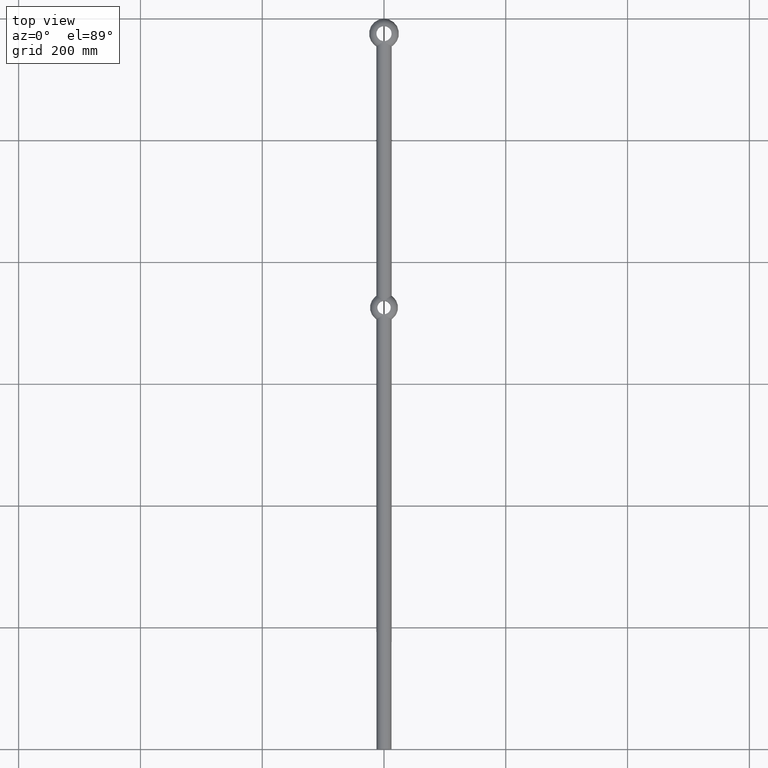
[diagram: clean part render]
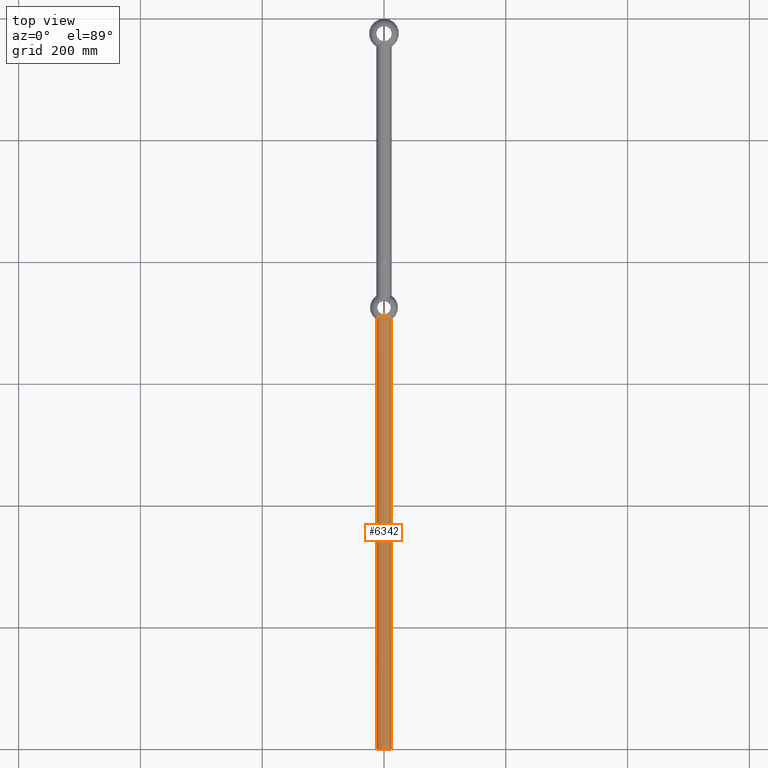
[diagram: same view with one face highlighted and labeled with its STEP entity id]
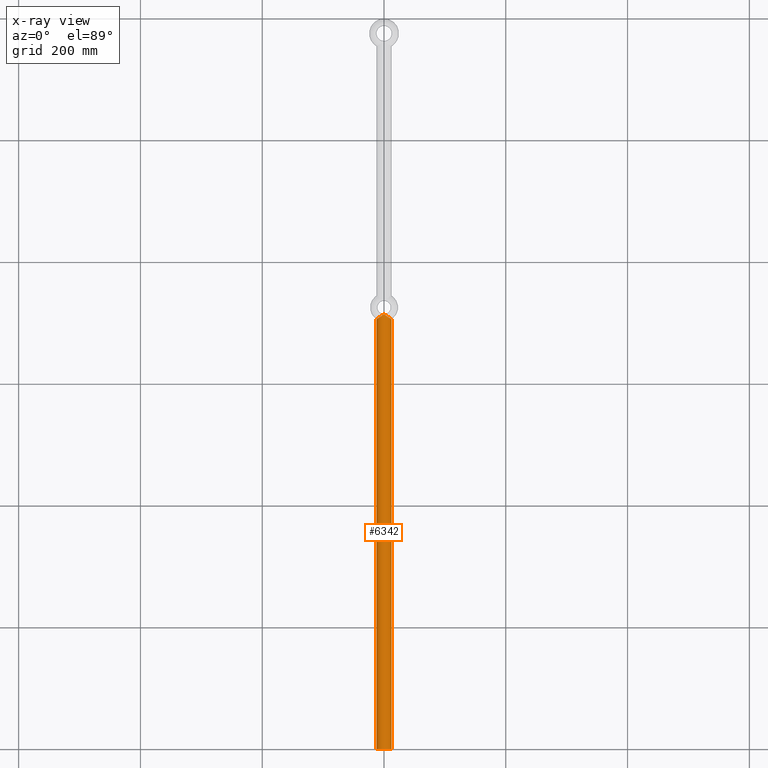
[diagram: x-ray of the same camera — body ghosted, the highlighted face saturated]
A machine part, top view. The second image highlights one B-rep face of the part: STEP entity #6342.
The next image is the same camera in x-ray: the body ghosted, the highlighted face saturated — about 0% of this face is hidden behind the body in this view.
In plain terms, the highlighted cylindrical surface (bore or boss wall) has radius 12.5 mm, axis along (-0, -1, -0).
Its self-contained STEP definition (entity closure, byte-faithful):
#34 = CARTESIAN_POINT ( 'NONE',  ( 3.958090306298088557, 711.5688135283046449, -11.86260182017057474 ) ) ;
#76 = CARTESIAN_POINT ( 'NONE',  ( 0.9780284369859363336, 713.9497151324809465, 12.46291899800123915 ) ) ;
#106 = ORIENTED_EDGE ( 'NONE', *, *, #9842, .T. ) ;
#150 = CARTESIAN_POINT ( 'NONE',  ( 11.69636377201255506, 706.6343767932925175, -4.432661876231143161 ) ) ;
#195 = ORIENTED_EDGE ( 'NONE', *, *, #562, .T. ) ;
#272 = CARTESIAN_POINT ( 'NONE',  ( -6.049038428950061608, 710.0825855475985691, 10.94598119601275599 ) ) ;
#349 = CARTESIAN_POINT ( 'NONE',  ( -2.896446207996265176, 712.3765000249653667, -12.18038553846203520 ) ) ;
#463 = CARTESIAN_POINT ( 'NONE',  ( -12.37557708383359945, 706.2609087804282808, 1.816949271129035370 ) ) ;
#562 = EDGE_CURVE ( 'NONE', #5982, #10345, #5065, .T. ) ;
#853 = CARTESIAN_POINT ( 'NONE',  ( 11.98540654602861544, 706.4744910832100686, -3.578190425711749612 ) ) ;
#891 = CARTESIAN_POINT ( 'NONE',  ( 6.710651684083771329, 709.6402197688991009, -10.55330609657151619 ) ) ;
#934 = CARTESIAN_POINT ( 'NONE',  ( 0.1152530490193925811, 714.4999999999996589, 12.49999999999999467 ) ) ;
#1009 = CARTESIAN_POINT ( 'NONE',  ( 9.763285335639560358, 707.7399431054620891, -7.817494833264392540 ) ) ;
#1212 = CARTESIAN_POINT ( 'NONE',  ( -3.595459275146385192, 711.8353660624314898, -11.99488586290688197 ) ) ;
#1250 = CARTESIAN_POINT ( 'NONE',  ( -9.757685069569808078, 707.7432492105797337, -7.824403866882096104 ) ) ;
#1322 = CARTESIAN_POINT ( 'NONE',  ( -10.27072573670141864, 707.4431062801096459, -7.137640130354301782 ) ) ;
#1371 = CARTESIAN_POINT ( 'NONE',  ( -12.47479469496548354, 706.2069344139823670, 0.9141718275163559504 ) ) ;
#1672 = CARTESIAN_POINT ( 'NONE',  ( 0.000000000000000000, 0.000000000000000000, 12.49999999999999645 ) ) ;
#1715 = CARTESIAN_POINT ( 'NONE',  ( 6.034918210630412894, 710.0921719769534093, 10.95370644490324352 ) ) ;
#1753 = CARTESIAN_POINT ( 'NONE',  ( 7.693744605340407716, 709.0046012382971412, 9.859968042706595881 ) ) ;
#1790 = CARTESIAN_POINT ( 'NONE',  ( 10.52264203433453460, 707.2976965703534233, 6.761265291202136929 ) ) ;
#1833 = CARTESIAN_POINT ( 'NONE',  ( 1.503043383957757273, 713.5190746393916470, 12.41428285818854249 ) ) ;
#1870 = CARTESIAN_POINT ( 'NONE',  ( 11.17272638985553534, 706.9274006439131881, 5.622664348009786650 ) ) ;
#1961 = CARTESIAN_POINT ( 'NONE',  ( -0.2271460333759962591, 714.4601606597491354, 12.49834700493578765 ) ) ;
#1998 = CARTESIAN_POINT ( 'NONE',  ( -5.007714147256624670, 710.8047456904614592, 11.45951233776880862 ) ) ;
#2041 = CARTESIAN_POINT ( 'NONE',  ( -0.1156422627732486413, 714.4999999999996589, 12.50000000000000000 ) ) ;
#2117 = CARTESIAN_POINT ( 'NONE',  ( -12.40205974800724675, 706.2462104537970617, -1.806242329754569109 ) ) ;
#2153 = CARTESIAN_POINT ( 'NONE',  ( -1.851091471682551726, 713.2271838837519908, -12.36724538807295914 ) ) ;
#2231 = CARTESIAN_POINT ( 'NONE',  ( -11.98889061115230703, 706.4725765171024250, 3.565961794243878824 ) ) ;
#2269 = CARTESIAN_POINT ( 'NONE',  ( -9.486056438045457284, 707.9040182558389915, -8.151262061399151548 ) ) ;
#2281 = DIRECTION ( 'NONE',  ( 0.000000000000000000, 1.000000000000000000, 0.000000000000000000 ) ) ;
#2465 = CARTESIAN_POINT ( 'NONE',  ( 0.1148557157519257549, 714.4999999999995453, -12.49999999999999289 ) ) ;
#2608 = CARTESIAN_POINT ( 'NONE',  ( 0.9786199828820373314, 713.9492433300275707, -12.46288266215421991 ) ) ;
#2645 = CARTESIAN_POINT ( 'NONE',  ( 0.4300574053441790778, 714.3562929528684435, -12.49301156894957998 ) ) ;
#2663 = DIRECTION ( 'NONE',  ( -0.000000000000000000, -1.000000000000000000, -0.000000000000000000 ) ) ;
#2680 = CARTESIAN_POINT ( 'NONE',  ( 9.509230145651955013, 707.8885222753352764, 8.158566212338982382 ) ) ;
#2760 = CARTESIAN_POINT ( 'NONE',  ( 0.8020691094110757868, 714.0938477652308620, -12.47561733527016514 ) ) ;
#2998 = AXIS2_PLACEMENT_3D ( 'NONE', #6880, #2663, #7878 ) ;
#3000 = CARTESIAN_POINT ( 'NONE',  ( -0.1152435876967470435, 714.4999999999996589, -12.49999999999999467 ) ) ;
#3074 = CARTESIAN_POINT ( 'NONE',  ( -12.30194266921710344, 706.3010098234453835, 2.261137400747658788 ) ) ;
#3088 = DIRECTION ( 'NONE',  ( 0.000000000000000000, 0.000000000000000000, 1.000000000000000000 ) ) ;
#3118 = CARTESIAN_POINT ( 'NONE',  ( -11.16786364387086117, 706.9301425804254677, -5.632360580614039769 ) ) ;
#3497 = B_SPLINE_CURVE_WITH_KNOTS ( 'NONE', 3,
 ( #7763, #2465, #8637, #2645, #7081, #2760, #2608, #10582, #3504, #4405, #10669, #5293, #34, #3669, #7973, #891, #4444, #9715, #9826, #5323, #11458, #10541, #1009, #8010, #4559, #4485, #150, #853, #10706, #3545, #8812, #8932, #9676, #4523, #3629, #7163, #6191, #1870, #7044, #1790, #10626, #2680, #8050, #5407, #1753, #5255, #6308, #1715, #8854, #7898, #3589, #8772, #9752, #6153, #1833, #76, #8895, #6273, #7938, #6234, #934, #7119 ),
 .UNSPECIFIED., .F., .F.,
 ( 4, 2, 2, 2, 2, 2, 2, 2, 2, 2, 2, 2, 2, 2, 2, 2, 2, 2, 2, 2, 2, 2, 2, 2, 2, 2, 2, 2, 2, 2, 4 ),
 ( 0.01160010150704736571, 0.01193653862037018752, 0.01227297573369300933, 0.01294584996033846386, 0.01429159841362916301, 0.01563734686691986217, 0.01698309532021055959, 0.01967459222679214872, 0.02102034068008294329, 0.02236608913337373786, 0.02371183758666453589, 0.02505758603995533393, 0.02774908294653703061, 0.02909483139982788069, 0.03044057985311872383, 0.03313207675970046562, 0.03582357366628220047, 0.03716932211957309218, 0.03851507057286397695, 0.03986081902615486172, 0.04120656747944574649, 0.04389806438602750910, 0.04524381283931847020, 0.04658956129260941742, 0.04793530974590037158, 0.04928105819919132574, 0.05197255510577305365, 0.05331830355906391067, 0.05399117778570933918, 0.05432761489903205343, 0.05466405201235477462 ),
 .UNSPECIFIED. ) ;
#3504 = CARTESIAN_POINT ( 'NONE',  ( 1.852883736927794400, 713.2256853363138589, -12.36702419332961966 ) ) ;
#3545 = CARTESIAN_POINT ( 'NONE',  ( 12.39792244811814648, 706.2484660939695686, -1.829592924429980672 ) ) ;
#3589 = CARTESIAN_POINT ( 'NONE',  ( 4.643879143979571467, 711.0651054535367166, 11.61139743305155569 ) ) ;
#3629 = CARTESIAN_POINT ( 'NONE',  ( 11.99171147647893321, 706.4710213781715993, 3.556817995476725169 ) ) ;
#3669 = CARTESIAN_POINT ( 'NONE',  ( 5.003555163965939023, 710.8011936259165395, -11.47892150805333955 ) ) ;
#3756 = CARTESIAN_POINT ( 'NONE',  ( -3.609724586731686724, 711.8245324599531614, 11.99062499113014724 ) ) ;
#3798 = CARTESIAN_POINT ( 'NONE',  ( -8.632854568927699646, 708.4191959594030550, 9.049442471043429137 ) ) ;
#3877 = CARTESIAN_POINT ( 'NONE',  ( -0.4283282719542401695, 714.3572903426924086, -12.49306536665762124 ) ) ;
#3987 = CARTESIAN_POINT ( 'NONE',  ( -10.96213927114721898, 707.0464358218330290, -6.022839512551446894 ) ) ;
#4044 = EDGE_LOOP ( 'NONE', ( #195, #4398 ) ) ;
#4137 = EDGE_LOOP ( 'NONE', ( #106 ) ) ;
#4228 = FACE_OUTER_BOUND ( 'NONE', #4044, .T. ) ;
#4398 = ORIENTED_EDGE ( 'NONE', *, *, #8998, .T. ) ;
#4405 = CARTESIAN_POINT ( 'NONE',  ( 2.552991374254464763, 712.6560355199354717, -12.24167883028932557 ) ) ;
#4444 = CARTESIAN_POINT ( 'NONE',  ( 7.047201128874421627, 709.4199958547231972, -10.33195921342264612 ) ) ;
#4485 = CARTESIAN_POINT ( 'NONE',  ( 11.53117945301393554, 706.7262438054435734, -4.845070598539714446 ) ) ;
#4523 = CARTESIAN_POINT ( 'NONE',  ( 12.11301872523465306, 706.4044191710656833, 3.118903854965727529 ) ) ;
#4559 = CARTESIAN_POINT ( 'NONE',  ( 10.97858101379134688, 707.0363968039728206, -6.040860340497826719 ) ) ;
#4672 = CARTESIAN_POINT ( 'NONE',  ( -8.930356992888375700, 708.2379490934299611, 8.756623964522859183 ) ) ;
#4745 = CARTESIAN_POINT ( 'NONE',  ( -12.10860307441600980, 706.4068425254645263, 3.135644649511097892 ) ) ;
#4814 = CARTESIAN_POINT ( 'NONE',  ( -5.698097834810766038, 710.3174663851078776, -11.15320503969839727 ) ) ;
#5065 = B_SPLINE_CURVE_WITH_KNOTS ( 'NONE', 3,
 ( #9868, #2041, #1961, #7334, #7288, #10881, #9139, #8145, #6311, #8221, #3756, #9903, #1998, #9104, #272, #7201, #8184, #3798, #4672, #10840, #7557, #5696, #6663, #7447, #6510, #2231, #4745, #3074, #463, #1371, #8364, #8406, #2117, #11028, #5615, #8327, #10921, #3118, #3987, #7412, #1322, #1250, #2269, #10097, #10136, #11071, #7523, #4814, #9249, #1212, #349, #2153, #8293, #8447, #6550, #10953, #3877, #10016, #3000, #9170 ),
 .UNSPECIFIED., .F., .F.,
 ( 4, 2, 2, 2, 2, 2, 2, 2, 2, 2, 2, 2, 2, 2, 2, 2, 2, 2, 2, 2, 2, 2, 2, 2, 2, 2, 2, 2, 2, 4 ),
 ( 0.05466405201235477462, 0.05500162528609088552, 0.05533919855982699643, 0.05601434510729921129, 0.05736463820224344673, 0.06006522439213170250, 0.06141551748707582692, 0.06276581058201995134, 0.06546639677190836670, 0.06681668986685250500, 0.06816698296179665717, 0.07086756915168504478, 0.07221786224662928022, 0.07356815534157351566, 0.07491844843651775110, 0.07626874153146198654, 0.07896932772135045742, 0.08031962081629467898, 0.08166991391123891442, 0.08302020700618314986, 0.08437050010112738530, 0.08572079319607160686, 0.08707108629101584230, 0.08977167248090431317, 0.09247225867079278405, 0.09517284486068125493, 0.09652313795562547649, 0.09719828450309760115, 0.09753585777683355940, 0.09787343105056951764 ),
 .UNSPECIFIED. ) ;
#5255 = CARTESIAN_POINT ( 'NONE',  ( 7.042109887080704844, 709.4233052854254993, 10.33544213827740599 ) ) ;
#5293 = CARTESIAN_POINT ( 'NONE',  ( 3.607989260932219278, 711.8323945115675997, -11.97349878702363846 ) ) ;
#5323 = CARTESIAN_POINT ( 'NONE',  ( 8.625512021311882549, 708.4237009865049686, -9.056396930487165875 ) ) ;
#5407 = CARTESIAN_POINT ( 'NONE',  ( 8.014756613617281644, 708.8023495445346498, 9.601283069029593165 ) ) ;
#5615 = CARTESIAN_POINT ( 'NONE',  ( -11.98686685498848270, 706.4736907303463340, -3.572745331275355429 ) ) ;
#5696 = CARTESIAN_POINT ( 'NONE',  ( -10.53649833625569876, 707.2877562056895613, 6.779219896870844586 ) ) ;
#5982 = VERTEX_POINT ( 'NONE', #10396 ) ;
#6153 = CARTESIAN_POINT ( 'NONE',  ( 1.848155644136381115, 713.2296228134777039, 12.36764654956709997 ) ) ;
#6191 = CARTESIAN_POINT ( 'NONE',  ( 11.54091770476639489, 706.7208092750014430, 4.821969295294628921 ) ) ;
#6192 = CIRCLE ( 'NONE', #8977, 12.49999999999999645 ) ;
#6234 = CARTESIAN_POINT ( 'NONE',  ( 0.2258048400517105314, 714.4607517777524208, 12.49837519209476788 ) ) ;
#6273 = CARTESIAN_POINT ( 'NONE',  ( 0.5249825342228831015, 714.2925197797251258, 12.48931420840010276 ) ) ;
#6308 = CARTESIAN_POINT ( 'NONE',  ( 6.709957680838250837, 709.6406898280580435, 10.55369085256305439 ) ) ;
#6311 = CARTESIAN_POINT ( 'NONE',  ( -1.854041913766530714, 713.2247226781784093, 12.36686703832716994 ) ) ;
#6342 = ADVANCED_FACE ( 'NONE', ( #8894, #4228 ), #11122, .T. ) ;
#6510 = CARTESIAN_POINT ( 'NONE',  ( -11.70373507139493263, 706.6302871238564194, 4.412727839192362111 ) ) ;
#6550 = CARTESIAN_POINT ( 'NONE',  ( -0.8004033546741959881, 714.0951778089266782, -12.47572514394136256 ) ) ;
#6663 = CARTESIAN_POINT ( 'NONE',  ( -10.98061114020904938, 707.0352301106561299, 6.038233688365731489 ) ) ;
#6880 = CARTESIAN_POINT ( 'NONE',  ( 0.000000000000000000, 1200.000999999999976, 0.000000000000000000 ) ) ;
#7044 = CARTESIAN_POINT ( 'NONE',  ( 10.96883081273575655, 707.0426443669990704, 6.010445434602779358 ) ) ;
#7081 = CARTESIAN_POINT ( 'NONE',  ( 0.5244309589791993353, 714.2928955858825475, -12.48933776696568643 ) ) ;
#7119 = CARTESIAN_POINT ( 'NONE',  ( 0.000000000000000000, 714.4999999999998863, 12.49999999999994493 ) ) ;
#7163 = CARTESIAN_POINT ( 'NONE',  ( 11.70522433519705174, 706.6294585397928358, 4.409061311750418710 ) ) ;
#7201 = CARTESIAN_POINT ( 'NONE',  ( -7.065482243255322814, 709.4032016550148683, 10.34168466468405967 ) ) ;
#7288 = CARTESIAN_POINT ( 'NONE',  ( -0.5243523183245278885, 714.2929581618158181, 12.48934281987370554 ) ) ;
#7334 = CARTESIAN_POINT ( 'NONE',  ( -0.4297893911309091930, 714.3564517524661142, 12.49302022152918745 ) ) ;
#7412 = CARTESIAN_POINT ( 'NONE',  ( -10.51214886816115346, 707.3037296140846593, -6.777744415924617627 ) ) ;
#7447 = CARTESIAN_POINT ( 'NONE',  ( -11.53677978155775463, 706.7231144228335324, 4.832052777421790957 ) ) ;
#7523 = CARTESIAN_POINT ( 'NONE',  ( -7.044538840065239782, 709.4168930952400842, -10.35551901757903259 ) ) ;
#7557 = CARTESIAN_POINT ( 'NONE',  ( -9.773672518172464407, 707.7338316863759928, 7.804276417934755017 ) ) ;
#7763 = CARTESIAN_POINT ( 'NONE',  ( -9.313064655098561723E-21, 714.4999999999998863, -12.49999999999999645 ) ) ;
#7878 = DIRECTION ( 'NONE',  ( 0.000000000000000000, 0.000000000000000000, -1.000000000000000000 ) ) ;
#7898 = CARTESIAN_POINT ( 'NONE',  ( 4.997178659694409220, 710.8122249160129513, 11.46411407676463412 ) ) ;
#7938 = CARTESIAN_POINT ( 'NONE',  ( 0.4294039073949138530, 714.3567435097197631, 12.49303736296640999 ) ) ;
#7973 = CARTESIAN_POINT ( 'NONE',  ( 5.694141484527945885, 710.3201032064368974, -11.15559120469631793 ) ) ;
#8010 = CARTESIAN_POINT ( 'NONE',  ( 10.53460890793552984, 707.2887880309609727, -6.783205673556193638 ) ) ;
#8050 = CARTESIAN_POINT ( 'NONE',  ( 8.940205865389319939, 708.2286365318666412, 8.775338151494979755 ) ) ;
#8097 = VERTEX_POINT ( 'NONE', #1672 ) ;
#8145 = CARTESIAN_POINT ( 'NONE',  ( -1.506532144226168324, 713.5161751775314087, 12.41390752383906637 ) ) ;
#8184 = CARTESIAN_POINT ( 'NONE',  ( -7.714148172953553484, 708.9886591096442316, 9.869967889797814919 ) ) ;
#8221 = CARTESIAN_POINT ( 'NONE',  ( -2.905862431769445919, 712.3689590763128763, 12.17840098593798359 ) ) ;
#8293 = CARTESIAN_POINT ( 'NONE',  ( -1.503500868673976143, 713.5187179901250829, -12.41426596060378529 ) ) ;
#8327 = CARTESIAN_POINT ( 'NONE',  ( -11.70130762617502462, 706.6316348103604241, -4.419149922664958652 ) ) ;
#8364 = CARTESIAN_POINT ( 'NONE',  ( -12.50001207125682079, 706.1932588706926026, 0.4539300576076127913 ) ) ;
#8375 = CARTESIAN_POINT ( 'NONE',  ( 0.000000000000000000, 0.000000000000000000, 0.000000000000000000 ) ) ;
#8406 = CARTESIAN_POINT ( 'NONE',  ( -12.49997584423651276, 706.1932785368840086, -0.9088569791597002068 ) ) ;
#8447 = CARTESIAN_POINT ( 'NONE',  ( -0.9764554383660667414, 713.9509960399860802, -12.46305192669767870 ) ) ;
#8637 = CARTESIAN_POINT ( 'NONE',  ( 0.2272735623716473363, 714.4601169859047332, -12.49834525693886889 ) ) ;
#8772 = CARTESIAN_POINT ( 'NONE',  ( 3.589017150620990915, 711.8401638509550367, 11.99706677905926178 ) ) ;
#8812 = CARTESIAN_POINT ( 'NONE',  ( 12.49882015091007226, 706.1939059164667469, -0.9332078957012572840 ) ) ;
#8854 = CARTESIAN_POINT ( 'NONE',  ( 5.692026245638508897, 710.3262715441757109, 11.13546331954537472 ) ) ;
#8894 = FACE_OUTER_BOUND ( 'NONE', #4137, .T. ) ;
#8895 = CARTESIAN_POINT ( 'NONE',  ( 0.8024643765023241615, 714.0935249537162690, 12.47559037296350404 ) ) ;
#8932 = CARTESIAN_POINT ( 'NONE',  ( 12.50115952292297195, 706.1926359651766916, 0.9013283107875482703 ) ) ;
#8977 = AXIS2_PLACEMENT_3D ( 'NONE', #8375, #2281, #3088 ) ;
#8998 = EDGE_CURVE ( 'NONE', #10345, #5982, #3497, .T. ) ;
#9104 = CARTESIAN_POINT ( 'NONE',  ( -5.702069019706003772, 710.3193623570580257, 11.13032043090488621 ) ) ;
#9132 = CARTESIAN_POINT ( 'NONE',  ( -9.313064655098561723E-21, 714.4999999999998863, -12.49999999999999645 ) ) ;
#9139 = CARTESIAN_POINT ( 'NONE',  ( -0.9790216173720220905, 713.9489192480799602, 12.46285286163332628 ) ) ;
#9170 = CARTESIAN_POINT ( 'NONE',  ( -9.313064655098561723E-21, 714.4999999999998863, -12.49999999999999645 ) ) ;
#9249 = CARTESIAN_POINT ( 'NONE',  ( -4.994231151426569149, 710.8077494835954440, -11.48312977674291524 ) ) ;
#9676 = CARTESIAN_POINT ( 'NONE',  ( 12.40255916343939013, 706.2459460205907362, 1.799350375832189819 ) ) ;
#9715 = CARTESIAN_POINT ( 'NONE',  ( 7.698110507886355869, 709.0018345940652580, -9.856547039760302553 ) ) ;
#9752 = CARTESIAN_POINT ( 'NONE',  ( 2.889655385010893252, 712.3819274808587352, 12.18184442503502751 ) ) ;
#9826 = CARTESIAN_POINT ( 'NONE',  ( 8.014105025523095449, 708.8027771954767786, -9.601661503730429814 ) ) ;
#9842 = EDGE_CURVE ( 'NONE', #8097, #8097, #6192, .T. ) ;
#9868 = CARTESIAN_POINT ( 'NONE',  ( 0.000000000000000000, 714.4999999999998863, 12.49999999999994493 ) ) ;
#9903 = CARTESIAN_POINT ( 'NONE',  ( -4.658887256335229488, 711.0542942274007601, 11.60532504285208155 ) ) ;
#10016 = CARTESIAN_POINT ( 'NONE',  ( -0.2269292342123443995, 714.4601800358216224, -12.49834591003125617 ) ) ;
#10097 = CARTESIAN_POINT ( 'NONE',  ( -8.914286169695229134, 708.2477037025606705, -8.772903853580602984 ) ) ;
#10136 = CARTESIAN_POINT ( 'NONE',  ( -8.613839541169754810, 708.4308488810520430, -9.067567455188692449 ) ) ;
#10345 = VERTEX_POINT ( 'NONE', #9132 ) ;
#10396 = CARTESIAN_POINT ( 'NONE',  ( 0.000000000000000000, 714.4999999999998863, 12.49999999999994493 ) ) ;
#10541 = CARTESIAN_POINT ( 'NONE',  ( 9.489014785455182732, 707.9022682637109938, -8.147690645418125044 ) ) ;
#10582 = CARTESIAN_POINT ( 'NONE',  ( 1.505764891212617362, 713.5168153696793070, -12.41399361118222622 ) ) ;
#10626 = CARTESIAN_POINT ( 'NONE',  ( 10.27911488746803492, 707.4382393274935339, 7.125602590746750842 ) ) ;
#10669 = CARTESIAN_POINT ( 'NONE',  ( 2.905761132465876972, 712.3756359453369669, -12.16300998728971905 ) ) ;
#10706 = CARTESIAN_POINT ( 'NONE',  ( 12.10641448425702826, 706.4080431220908167, -3.144233000278540580 ) ) ;
#10840 = CARTESIAN_POINT ( 'NONE',  ( -9.503141054149862654, 707.8938490992077277, 8.131423576558889366 ) ) ;
#10881 = CARTESIAN_POINT ( 'NONE',  ( -0.8026965821069480533, 714.0933855021515910, 12.47558399039206556 ) ) ;
#10921 = CARTESIAN_POINT ( 'NONE',  ( -11.53718293677249562, 706.7228916951340807, -4.830949592118830793 ) ) ;
#10953 = CARTESIAN_POINT ( 'NONE',  ( -0.5226798753081399740, 714.2940821385618619, -12.48941137913568333 ) ) ;
#11028 = CARTESIAN_POINT ( 'NONE',  ( -12.10884328758596062, 706.4067090553371600, -3.135572288023202425 ) ) ;
#11071 = CARTESIAN_POINT ( 'NONE',  ( -7.692220780832719207, 709.0025315567652342, -9.887152483935528480 ) ) ;
#11122 = CYLINDRICAL_SURFACE ( 'NONE', #2998, 12.49999999999999645 ) ;
#11458 = CARTESIAN_POINT ( 'NONE',  ( 8.920932253935511369, 708.2436810394285658, -8.766027160162931153 ) ) ;